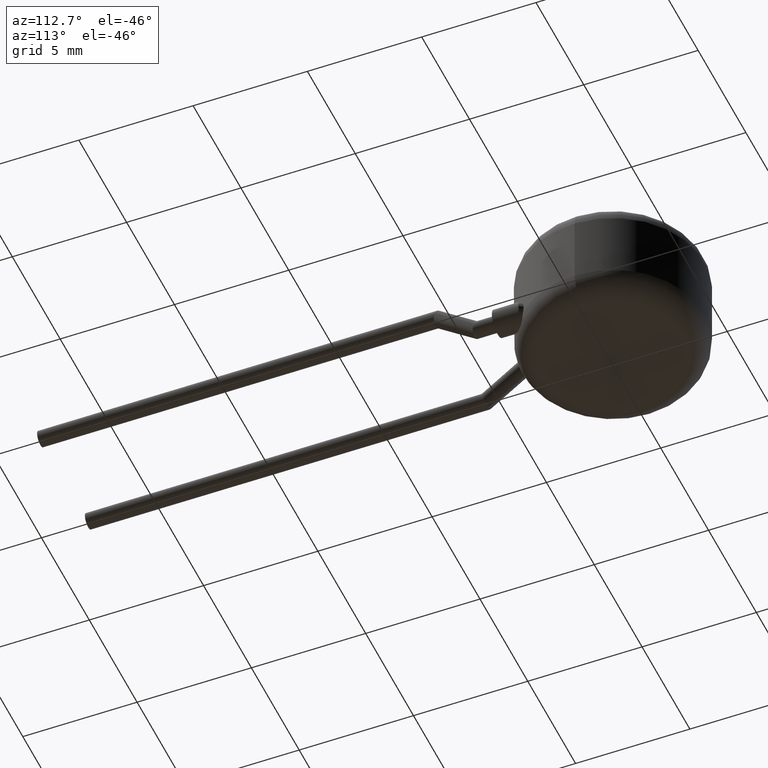
[diagram: clean part render]
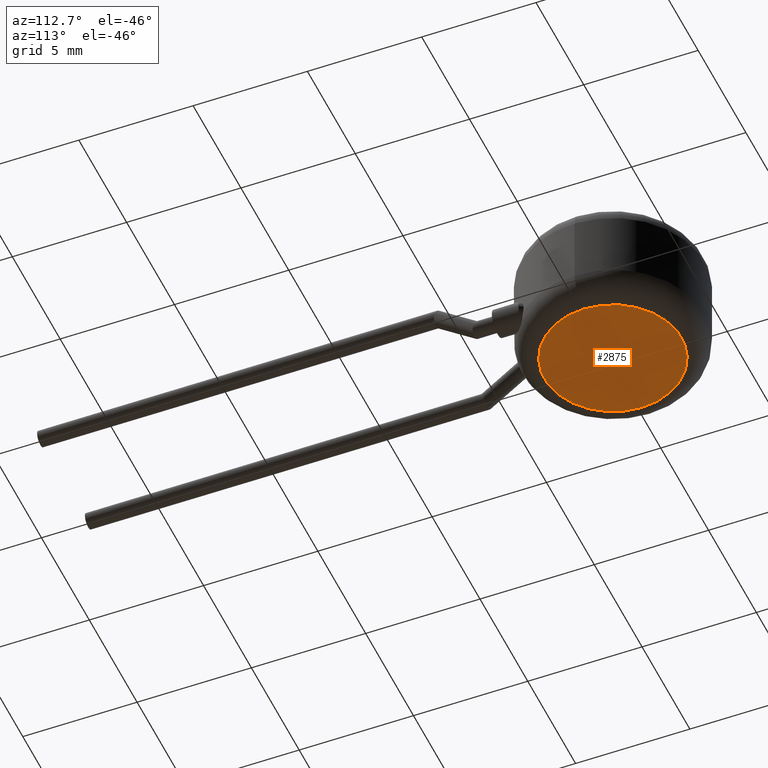
[diagram: same view with one face highlighted and labeled with its STEP entity id]
A machine part, auxiliary view. The second image highlights one B-rep face of the part: STEP entity #2875.
In plain terms, the highlighted planar face has unit normal (0, 0, 1).
Its self-contained STEP definition (entity closure, byte-faithful):
#172 = DIRECTION ( 'NONE',  ( 1.000000000000000000, 0.000000000000000000, 0.000000000000000000 ) ) ;
#203 = VERTEX_POINT ( 'NONE', #3164 ) ;
#242 = CIRCLE ( 'NONE', #1356, 3.000000000000000000 ) ;
#594 = ORIENTED_EDGE ( 'NONE', *, *, #3709, .T. ) ;
#826 = CARTESIAN_POINT ( 'NONE',  ( 0.000000000000000000, 0.000000000000000000, 0.000000000000000000 ) ) ;
#1008 = DIRECTION ( 'NONE',  ( 1.000000000000000000, 0.000000000000000000, 0.000000000000000000 ) ) ;
#1356 = AXIS2_PLACEMENT_3D ( 'NONE', #1882, #2156, #1008 ) ;
#1468 = DIRECTION ( 'NONE',  ( 1.000000000000000000, 0.000000000000000000, -0.000000000000000000 ) ) ;
#1775 = DIRECTION ( 'NONE',  ( 0.000000000000000000, 0.000000000000000000, 1.000000000000000000 ) ) ;
#1866 = PLANE ( 'NONE',  #2458 ) ;
#1875 = VERTEX_POINT ( 'NONE', #3542 ) ;
#1882 = CARTESIAN_POINT ( 'NONE',  ( 0.000000000000000000, 0.000000000000000000, 0.000000000000000000 ) ) ;
#1930 = DIRECTION ( 'NONE',  ( -0.000000000000000000, -0.000000000000000000, -1.000000000000000000 ) ) ;
#1933 = ORIENTED_EDGE ( 'NONE', *, *, #3747, .T. ) ;
#2092 = CIRCLE ( 'NONE', #2657, 3.000000000000000000 ) ;
#2156 = DIRECTION ( 'NONE',  ( -0.000000000000000000, -0.000000000000000000, -1.000000000000000000 ) ) ;
#2444 = FACE_OUTER_BOUND ( 'NONE', #2666, .T. ) ;
#2458 = AXIS2_PLACEMENT_3D ( 'NONE', #826, #1775, #1468 ) ;
#2535 = CARTESIAN_POINT ( 'NONE',  ( 0.000000000000000000, 0.000000000000000000, 0.000000000000000000 ) ) ;
#2657 = AXIS2_PLACEMENT_3D ( 'NONE', #2535, #1930, #172 ) ;
#2666 = EDGE_LOOP ( 'NONE', ( #594, #1933 ) ) ;
#2875 = ADVANCED_FACE ( 'NONE', ( #2444 ), #1866, .F. ) ;
#3164 = CARTESIAN_POINT ( 'NONE',  ( -3.000000000000000000, 4.286263797015736595E-16, 0.000000000000000000 ) ) ;
#3542 = CARTESIAN_POINT ( 'NONE',  ( 3.000000000000000000, 0.000000000000000000, 0.000000000000000000 ) ) ;
#3709 = EDGE_CURVE ( 'NONE', #1875, #203, #2092, .T. ) ;
#3747 = EDGE_CURVE ( 'NONE', #203, #1875, #242, .T. ) ;